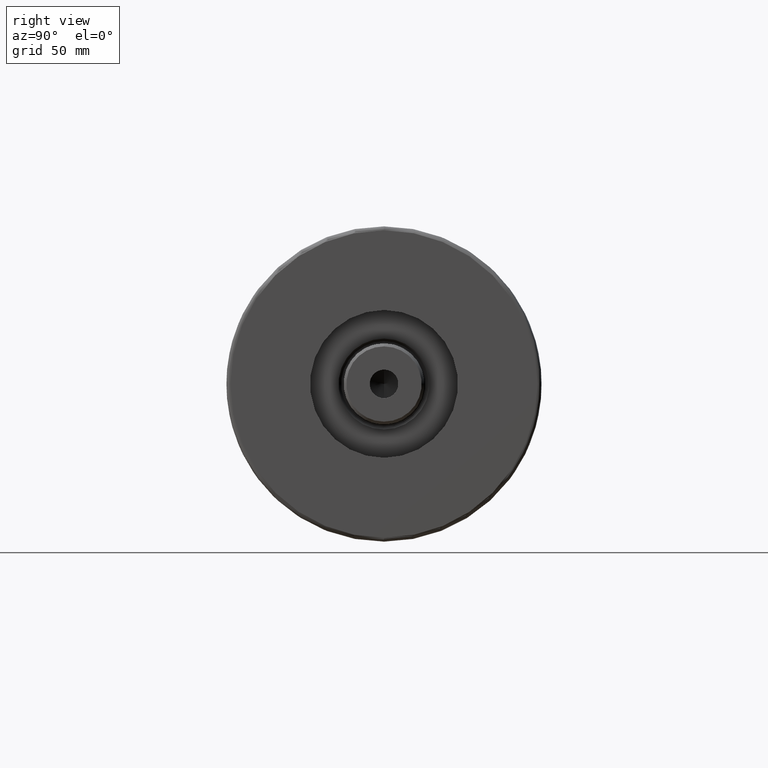
[diagram: clean part render]
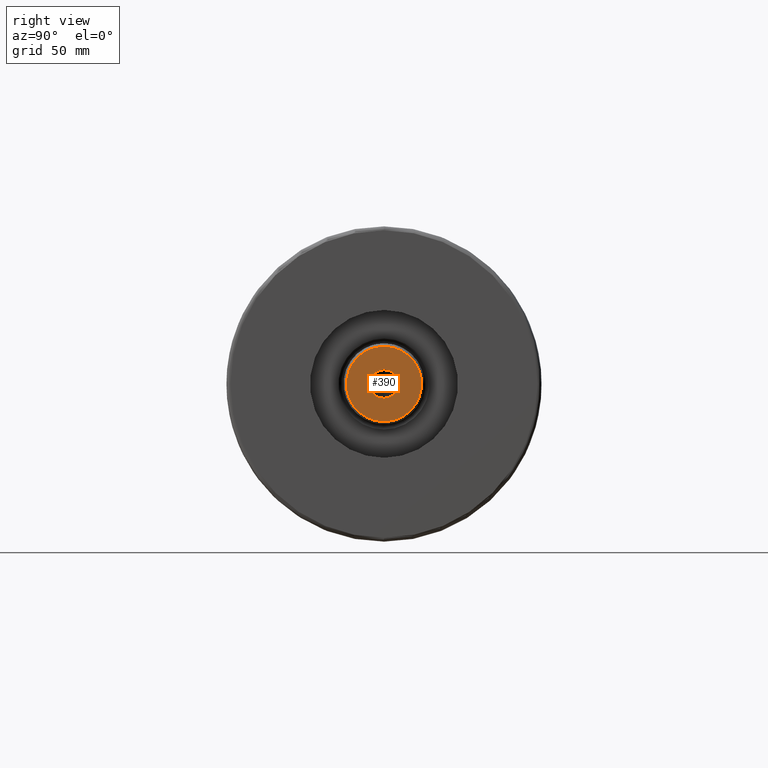
[diagram: same view with one face highlighted and labeled with its STEP entity id]
A machine part, right view. The second image highlights one B-rep face of the part: STEP entity #390.
In plain terms, the highlighted planar face has unit normal (1, 0, -0).
Its self-contained STEP definition (entity closure, byte-faithful):
#96 = ORIENTED_EDGE ( 'NONE', *, *, #2734, .T. ) ;
#206 = VERTEX_POINT ( 'NONE', #3480 ) ;
#213 = ORIENTED_EDGE ( 'NONE', *, *, #2253, .F. ) ;
#390 = ADVANCED_FACE ( 'NONE', ( #3268, #2855 ), #957, .T. ) ;
#580 = DIRECTION ( 'NONE',  ( 1.000000000000000000, 0.000000000000000000, -0.000000000000000000 ) ) ;
#679 = CIRCLE ( 'NONE', #1471, 7.249999999999999112 ) ;
#747 = VERTEX_POINT ( 'NONE', #2485 ) ;
#807 = DIRECTION ( 'NONE',  ( 1.000000000000000000, 0.000000000000000000, 0.000000000000000000 ) ) ;
#882 = DIRECTION ( 'NONE',  ( 1.000000000000000000, 0.000000000000000000, 0.000000000000000000 ) ) ;
#957 = PLANE ( 'NONE',  #2814 ) ;
#1374 = CARTESIAN_POINT ( 'NONE',  ( 0.000000000000000000, 0.000000000000000000, 253.3000000000000114 ) ) ;
#1395 = ORIENTED_EDGE ( 'NONE', *, *, #3734, .T. ) ;
#1471 = AXIS2_PLACEMENT_3D ( 'NONE', #2710, #4233, #807 ) ;
#1610 = DIRECTION ( 'NONE',  ( 1.000000000000000000, 0.000000000000000000, 0.000000000000000000 ) ) ;
#1684 = VERTEX_POINT ( 'NONE', #4017 ) ;
#1728 = CARTESIAN_POINT ( 'NONE',  ( 0.000000000000000000, 0.000000000000000000, 253.3000000000000114 ) ) ;
#1807 = AXIS2_PLACEMENT_3D ( 'NONE', #3937, #3177, #882 ) ;
#2059 = CIRCLE ( 'NONE', #1807, 19.10000000000006182 ) ;
#2117 = EDGE_CURVE ( 'NONE', #1684, #747, #679, .T. ) ;
#2253 = EDGE_CURVE ( 'NONE', #747, #1684, #3219, .T. ) ;
#2291 = CIRCLE ( 'NONE', #4514, 19.10000000000006182 ) ;
#2406 = CARTESIAN_POINT ( 'NONE',  ( -19.10000000000006182, 0.000000000000000000, 253.3000000000000114 ) ) ;
#2481 = DIRECTION ( 'NONE',  ( 0.000000000000000000, 0.000000000000000000, 1.000000000000000000 ) ) ;
#2485 = CARTESIAN_POINT ( 'NONE',  ( 7.249999999999999112, 0.000000000000000000, 253.3000000000000114 ) ) ;
#2710 = CARTESIAN_POINT ( 'NONE',  ( 0.000000000000000000, 0.000000000000000000, 253.3000000000000114 ) ) ;
#2734 = EDGE_CURVE ( 'NONE', #3660, #206, #2059, .T. ) ;
#2814 = AXIS2_PLACEMENT_3D ( 'NONE', #1374, #4428, #580 ) ;
#2855 = FACE_BOUND ( 'NONE', #4073, .T. ) ;
#3175 = DIRECTION ( 'NONE',  ( -0.000000000000000000, -0.000000000000000000, 1.000000000000000000 ) ) ;
#3177 = DIRECTION ( 'NONE',  ( 0.000000000000000000, 0.000000000000000000, 1.000000000000000000 ) ) ;
#3219 = CIRCLE ( 'NONE', #4889, 7.249999999999999112 ) ;
#3268 = FACE_OUTER_BOUND ( 'NONE', #3350, .T. ) ;
#3350 = EDGE_LOOP ( 'NONE', ( #96, #1395 ) ) ;
#3480 = CARTESIAN_POINT ( 'NONE',  ( 19.10000000000006182, 2.424800662311762954E-15, 253.3000000000000114 ) ) ;
#3660 = VERTEX_POINT ( 'NONE', #2406 ) ;
#3734 = EDGE_CURVE ( 'NONE', #206, #3660, #2291, .T. ) ;
#3937 = CARTESIAN_POINT ( 'NONE',  ( 0.000000000000000000, 0.000000000000000000, 253.3000000000000114 ) ) ;
#4001 = DIRECTION ( 'NONE',  ( 1.000000000000000000, 0.000000000000000000, 0.000000000000000000 ) ) ;
#4017 = CARTESIAN_POINT ( 'NONE',  ( -7.249999999999999112, 8.878689293818310074E-16, 253.3000000000000114 ) ) ;
#4073 = EDGE_LOOP ( 'NONE', ( #213, #4712 ) ) ;
#4233 = DIRECTION ( 'NONE',  ( -0.000000000000000000, -0.000000000000000000, 1.000000000000000000 ) ) ;
#4428 = DIRECTION ( 'NONE',  ( 0.000000000000000000, 0.000000000000000000, 1.000000000000000000 ) ) ;
#4514 = AXIS2_PLACEMENT_3D ( 'NONE', #1728, #2481, #4001 ) ;
#4691 = CARTESIAN_POINT ( 'NONE',  ( 0.000000000000000000, 0.000000000000000000, 253.3000000000000114 ) ) ;
#4712 = ORIENTED_EDGE ( 'NONE', *, *, #2117, .F. ) ;
#4889 = AXIS2_PLACEMENT_3D ( 'NONE', #4691, #3175, #1610 ) ;